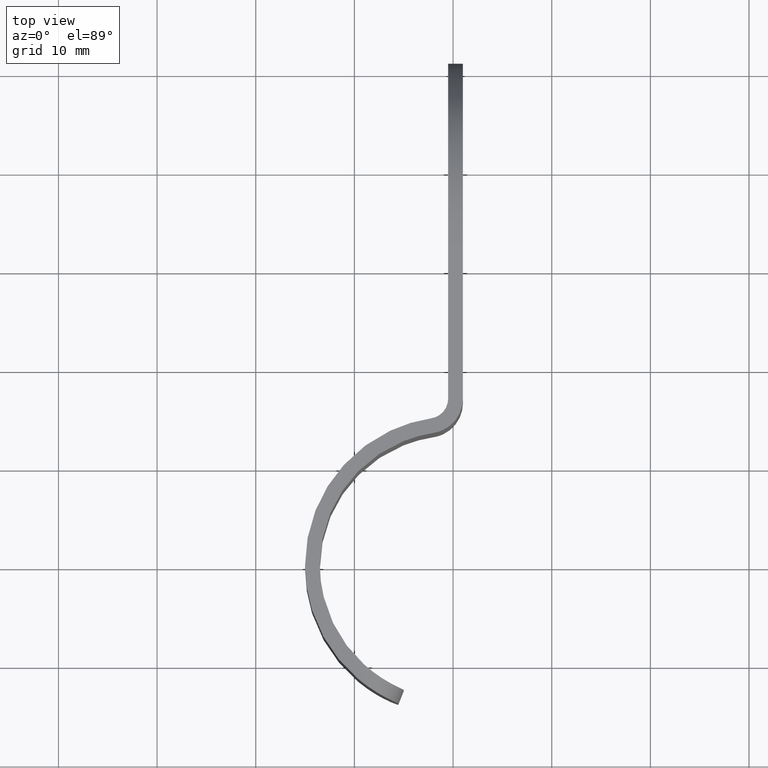
[diagram: clean part render]
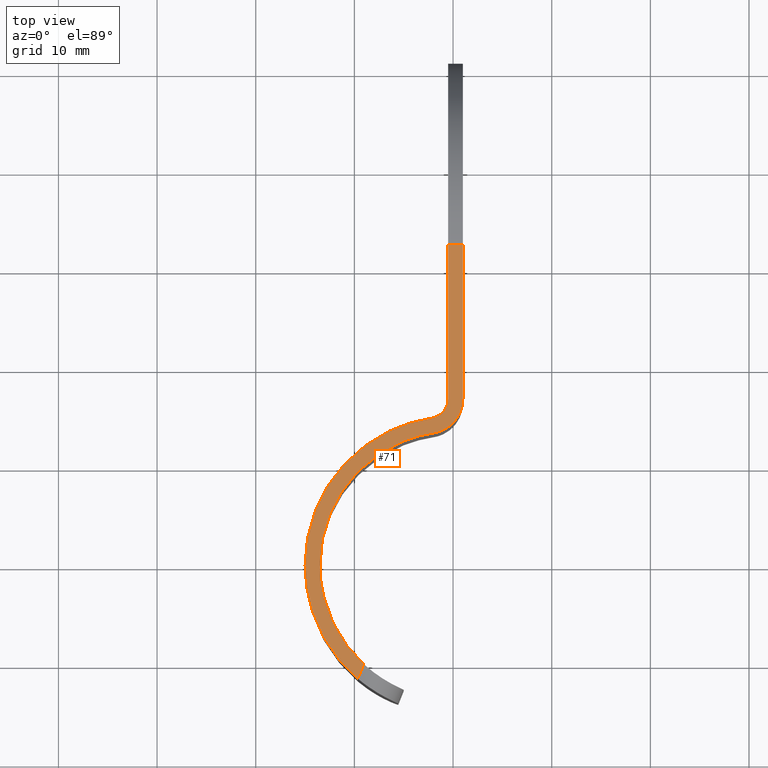
[diagram: same view with one face highlighted and labeled with its STEP entity id]
A machine part, top view. The second image highlights one B-rep face of the part: STEP entity #71.
In plain terms, the highlighted planar face has unit normal (0, 0.1645, -0.9864).
Its self-contained STEP definition (entity closure, byte-faithful):
#16 = CARTESIAN_POINT ( 'NONE',  ( -0.4999999830687073000, 32.36721305702062100, 15.78190812074337000 ) ) ;
#17 = EDGE_CURVE ( 'NONE', #589, #518, #416, .T. ) ;
#29 = CARTESIAN_POINT ( 'NONE',  ( -1.984335818890923700, 13.35336710553417200, 12.61000297431061400 ) ) ;
#30 = LINE ( 'NONE', #62, #490 ) ;
#36 = ORIENTED_EDGE ( 'NONE', *, *, #38, .T. ) ;
#37 = CARTESIAN_POINT ( 'NONE',  ( 1.001206748977360400, 32.36721305702062100, 15.78190812074337000 ) ) ;
#38 = EDGE_CURVE ( 'NONE', #606, #518, #621, .T. ) ;
#45 = CARTESIAN_POINT ( 'NONE',  ( -2.205882338001806900, 14.83691622645664400, 12.85748983749685200 ) ) ;
#61 = VERTEX_POINT ( 'NONE', #45 ) ;
#62 = CARTESIAN_POINT ( 'NONE',  ( -15.00000000000002300, 32.36721305702062100, 15.78190812074337000 ) ) ;
#64 = ORIENTED_EDGE ( 'NONE', *, *, #299, .T. ) ;
#71 = ADVANCED_FACE ( 'NONE', ( #442 ), #498, .F. ) ;
#112 = DIRECTION ( 'NONE',  ( 0.0000000000000000000, 0.1645469166142101700, -0.9863692575464607600 ) ) ;
#117 = CARTESIAN_POINT ( 'NONE',  ( -0.4999999830687073000, 17.27165112733882100, 13.26365428113503600 ) ) ;
#138 = EDGE_CURVE ( 'NONE', #310, #606, #494, .T. ) ;
#154 = CARTESIAN_POINT ( 'NONE',  ( 1.001206748977360400, 16.81535115381116800, 13.18753395082193900 ) ) ;
#155 = CARTESIAN_POINT ( 'NONE',  ( -13.50000006286280100, 7.012285762349909700, 11.55217866050720200 ) ) ;
#157 = LINE ( 'NONE', #117, #601 ) ;
#161 = LINE ( 'NONE', #467, #475 ) ;
#172 =( BOUNDED_CURVE ( )  B_SPLINE_CURVE ( 3, ( #410, #692, #476, #513 ),
 .UNSPECIFIED., .F., .F. ) 
 B_SPLINE_CURVE_WITH_KNOTS ( ( 4, 4 ),
 ( 1.570796326794896600, 2.993998548937665900 ),
 .UNSPECIFIED. ) 
 CURVE ( )  GEOMETRIC_REPRESENTATION_ITEM ( )  RATIONAL_B_SPLINE_CURVE ( ( 1.000000000000000000, 0.8382114974115488800, 0.8382114974115488800, 1.000000000000000000 ) ) 
 REPRESENTATION_ITEM ( '' )  );
#178 = CARTESIAN_POINT ( 'NONE',  ( -1.178381815577953300, 14.98968013103816300, 12.88297403550537700 ) ) ;
#182 = CARTESIAN_POINT ( 'NONE',  ( -0.4999999830687073000, 16.81517172331753300, 13.18750401808199500 ) ) ;
#188 = CARTESIAN_POINT ( 'NONE',  ( -9.049220486844761900, -10.01806419812553500, 8.711161918128475200 ) ) ;
#194 = CARTESIAN_POINT ( 'NONE',  ( -13.50000006286279900, -3.876687536409117600, 9.735671335591039400 ) ) ;
#206 = ORIENTED_EDGE ( 'NONE', *, *, #588, .F. ) ;
#223 = CARTESIAN_POINT ( 'NONE',  ( -13.09339774898261800, -8.596526757758200100, 8.948303942653790700 ) ) ;
#233 = CARTESIAN_POINT ( 'NONE',  ( -9.637746092785000900, -11.49407892138418300, 8.464931949248947900 ) ) ;
#259 =( BOUNDED_CURVE ( )  B_SPLINE_CURVE ( 3, ( #182, #307, #178, #744 ),
 .UNSPECIFIED., .F., .T. ) 
 B_SPLINE_CURVE_WITH_KNOTS ( ( 4, 4 ),
 ( 4.712388980384689700, 6.135591202527458600 ),
 .UNSPECIFIED. ) 
 CURVE ( )  GEOMETRIC_REPRESENTATION_ITEM ( )  RATIONAL_B_SPLINE_CURVE ( ( 1.000000000000000000, 0.8382114974115491000, 0.8382114974115491000, 1.000000000000000000 ) ) 
 REPRESENTATION_ITEM ( '' )  );
#271 = CARTESIAN_POINT ( 'NONE',  ( -15.00000000000002300, -14.28109305101088500, 8.000000000000000000 ) ) ;
#279 = CARTESIAN_POINT ( 'NONE',  ( -9.637746092785000900, -11.49407892138418300, 8.464931949248947900 ) ) ;
#284 = VERTEX_POINT ( 'NONE', #707 ) ;
#292 = DIRECTION ( 'NONE',  ( 0.3660022587492334800, 0.9179290029304906200, 0.1531296580336233800 ) ) ;
#295 = DIRECTION ( 'NONE',  ( 0.0000000000000000000, -0.9863692575464607600, -0.1645469166142101700 ) ) ;
#299 = EDGE_CURVE ( 'NONE', #284, #61, #259, .T. ) ;
#307 = CARTESIAN_POINT ( 'NONE',  ( -0.4999999830687070800, 15.77637716512795800, 13.01421147045039500 ) ) ;
#310 = VERTEX_POINT ( 'NONE', #188 ) ;
#315 = EDGE_CURVE ( 'NONE', #589, #323, #351, .T. ) ;
#323 = VERTEX_POINT ( 'NONE', #37 ) ;
#326 = CARTESIAN_POINT ( 'NONE',  ( -15.00000000000002500, 0.0000000000000000000, 10.38238348310828100 ) ) ;
#328 = ORIENTED_EDGE ( 'NONE', *, *, #572, .F. ) ;
#329 = EDGE_CURVE ( 'NONE', #680, #695, #568, .T. ) ;
#336 = CARTESIAN_POINT ( 'NONE',  ( -15.00000000000002500, -4.509693660318289300, 9.630072742477688400 ) ) ;
#345 = EDGE_CURVE ( 'NONE', #680, #310, #161, .T. ) ;
#346 = DIRECTION ( 'NONE',  ( 1.000000000000000000, -0.0000000000000000000, -0.0000000000000000000 ) ) ;
#351 = LINE ( 'NONE', #571, #614 ) ;
#354 = CARTESIAN_POINT ( 'NONE',  ( -13.50000006286279900, 0.0000000000000000000, 10.38238348310828100 ) ) ;
#366 = CARTESIAN_POINT ( 'NONE',  ( -9.049220486844761900, -10.01806419812553500, 8.711161918128475200 ) ) ;
#376 = ORIENTED_EDGE ( 'NONE', *, *, #329, .F. ) ;
#385 = CARTESIAN_POINT ( 'NONE',  ( 1.001206748977362200, 14.99735114981560900, 12.88425372105666800 ) ) ;
#387 = CARTESIAN_POINT ( 'NONE',  ( -8.920456233523884400, 12.32264638362781800, 12.43805731057212700 ) ) ;
#391 = CARTESIAN_POINT ( 'NONE',  ( -0.1860823864337354200, 13.62059099515445300, 12.65458147951671500 ) ) ;
#395 = DIRECTION ( 'NONE',  ( 0.0000000000000000000, 0.9863692575464607600, 0.1645469166142101700 ) ) ;
#410 = CARTESIAN_POINT ( 'NONE',  ( -15.00000000000002500, 0.0000000000000000000, 10.38238348310828100 ) ) ;
#412 = AXIS2_PLACEMENT_3D ( 'NONE', #271, #112, #395 ) ;
#416 =( BOUNDED_CURVE ( )  B_SPLINE_CURVE ( 3, ( #443, #385, #391, #29 ),
 .UNSPECIFIED., .F., .T. ) 
 B_SPLINE_CURVE_WITH_KNOTS ( ( 4, 4 ),
 ( 4.712388980384688800, 6.135662967173656700 ),
 .UNSPECIFIED. ) 
 CURVE ( )  GEOMETRIC_REPRESENTATION_ITEM ( )  RATIONAL_B_SPLINE_CURVE ( ( 1.000000000000000000, 0.8381958751871453300, 0.8381958751871453300, 1.000000000000000000 ) ) 
 REPRESENTATION_ITEM ( '' )  );
#420 = CARTESIAN_POINT ( 'NONE',  ( -11.92602822276887100, -7.419471597220770300, 9.144661235695394900 ) ) ;
#442 = FACE_OUTER_BOUND ( 'NONE', #534, .T. ) ;
#443 = CARTESIAN_POINT ( 'NONE',  ( 1.001206748977360400, 16.81535115381116800, 13.18753395082193900 ) ) ;
#458 = ORIENTED_EDGE ( 'NONE', *, *, #671, .T. ) ;
#467 = CARTESIAN_POINT ( 'NONE',  ( -9.377633374378236300, -10.84171953684756300, 8.573759068939248000 ) ) ;
#475 = VECTOR ( 'NONE', #292, 1000.000000000000100 ) ;
#476 = CARTESIAN_POINT ( 'NONE',  ( -9.912136256180685800, 13.69118694209525500, 12.66635835243291600 ) ) ;
#490 = VECTOR ( 'NONE', #346, 1000.000000000000000 ) ;
#494 =( BOUNDED_CURVE ( )  B_SPLINE_CURVE ( 3, ( #366, #420, #194, #520 ),
 .UNSPECIFIED., .F., .T. ) 
 B_SPLINE_CURVE_WITH_KNOTS ( ( 4, 4 ),
 ( 0.7346299907963106400, 1.570796326794896600 ),
 .UNSPECIFIED. ) 
 CURVE ( )  GEOMETRIC_REPRESENTATION_ITEM ( )  RATIONAL_B_SPLINE_CURVE ( ( 1.000000000000000000, 0.9425792471086885700, 0.9425792471086885700, 1.000000000000000000 ) ) 
 REPRESENTATION_ITEM ( '' )  );
#495 = ORIENTED_EDGE ( 'NONE', *, *, #17, .F. ) ;
#498 = PLANE ( 'NONE',  #412 ) ;
#513 = CARTESIAN_POINT ( 'NONE',  ( -2.205882338001806900, 14.83691622645664400, 12.85748983749685200 ) ) ;
#515 = DIRECTION ( 'NONE',  ( 0.0000000000000000000, 0.9863692575464607600, 0.1645469166142101700 ) ) ;
#518 = VERTEX_POINT ( 'NONE', #523 ) ;
#520 = CARTESIAN_POINT ( 'NONE',  ( -13.50000006286279900, 0.0000000000000000000, 10.38238348310828100 ) ) ;
#523 = CARTESIAN_POINT ( 'NONE',  ( -1.984335818890923700, 13.35336710553417200, 12.61000297431061400 ) ) ;
#529 = ORIENTED_EDGE ( 'NONE', *, *, #315, .T. ) ;
#534 = EDGE_LOOP ( 'NONE', ( #376, #563, #564, #36, #495, #529, #206, #458, #64, #328 ) ) ;
#563 = ORIENTED_EDGE ( 'NONE', *, *, #345, .T. ) ;
#564 = ORIENTED_EDGE ( 'NONE', *, *, #138, .T. ) ;
#568 =( BOUNDED_CURVE ( )  B_SPLINE_CURVE ( 3, ( #279, #223, #336, #326 ),
 .UNSPECIFIED., .F., .T. ) 
 B_SPLINE_CURVE_WITH_KNOTS ( ( 4, 4 ),
 ( 0.6977777223333139200, 1.570796326794896600 ),
 .UNSPECIFIED. ) 
 CURVE ( )  GEOMETRIC_REPRESENTATION_ITEM ( )  RATIONAL_B_SPLINE_CURVE ( ( 1.000000000000000000, 0.9374886493068308500, 0.9374886493068308500, 1.000000000000000000 ) ) 
 REPRESENTATION_ITEM ( '' )  );
#571 = CARTESIAN_POINT ( 'NONE',  ( 1.001206748977360400, -14.28109305101088500, 8.000000000000000000 ) ) ;
#572 = EDGE_CURVE ( 'NONE', #695, #61, #172, .T. ) ;
#588 = EDGE_CURVE ( 'NONE', #679, #323, #30, .T. ) ;
#589 = VERTEX_POINT ( 'NONE', #154 ) ;
#596 = CARTESIAN_POINT ( 'NONE',  ( -15.00000000000002500, 0.0000000000000000000, 10.38238348310828100 ) ) ;
#601 = VECTOR ( 'NONE', #295, 1000.000000000000000 ) ;
#606 = VERTEX_POINT ( 'NONE', #354 ) ;
#613 = CARTESIAN_POINT ( 'NONE',  ( -13.50000006286279900, 0.0000000000000000000, 10.38238348310828100 ) ) ;
#614 = VECTOR ( 'NONE', #515, 1000.000000000000000 ) ;
#621 =( BOUNDED_CURVE ( )  B_SPLINE_CURVE ( 3, ( #613, #155, #387, #725 ),
 .UNSPECIFIED., .F., .T. ) 
 B_SPLINE_CURVE_WITH_KNOTS ( ( 4, 4 ),
 ( 1.570796326794896600, 2.994070313583864000 ),
 .UNSPECIFIED. ) 
 CURVE ( )  GEOMETRIC_REPRESENTATION_ITEM ( )  RATIONAL_B_SPLINE_CURVE ( ( 1.000000000000000000, 0.8381958751871454400, 0.8381958751871454400, 1.000000000000000000 ) ) 
 REPRESENTATION_ITEM ( '' )  );
#671 = EDGE_CURVE ( 'NONE', #679, #284, #157, .T. ) ;
#679 = VERTEX_POINT ( 'NONE', #16 ) ;
#680 = VERTEX_POINT ( 'NONE', #233 ) ;
#692 = CARTESIAN_POINT ( 'NONE',  ( -15.00000000000002700, 7.790959186421820200, 11.68207759034527600 ) ) ;
#695 = VERTEX_POINT ( 'NONE', #596 ) ;
#707 = CARTESIAN_POINT ( 'NONE',  ( -0.4999999830687073000, 16.81517172331753300, 13.18750401808199500 ) ) ;
#725 = CARTESIAN_POINT ( 'NONE',  ( -1.984335818890923700, 13.35336710553417200, 12.61000297431061400 ) ) ;
#744 = CARTESIAN_POINT ( 'NONE',  ( -2.205882338001806900, 14.83691622645664400, 12.85748983749685200 ) ) ;